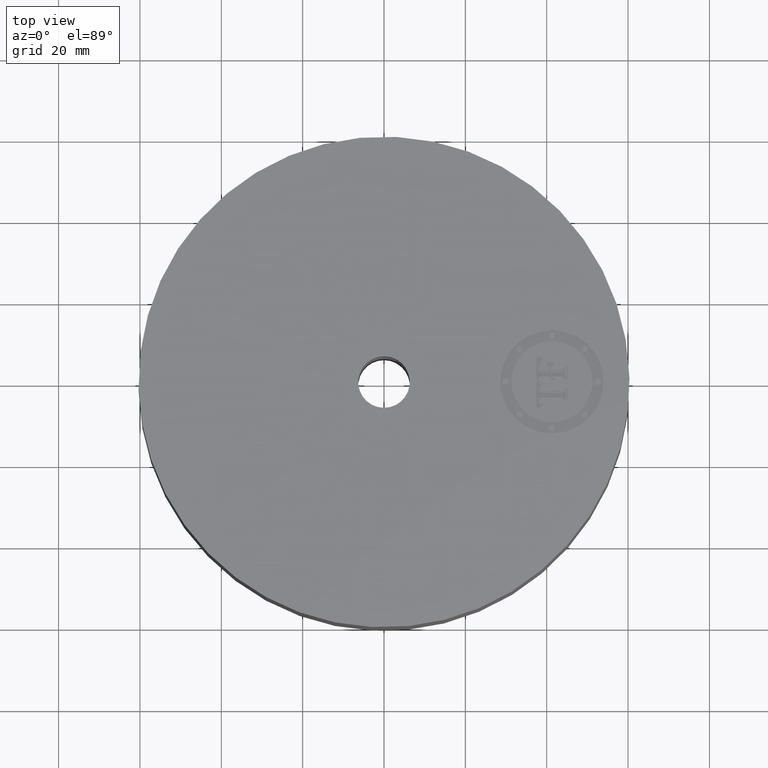
[diagram: clean part render]
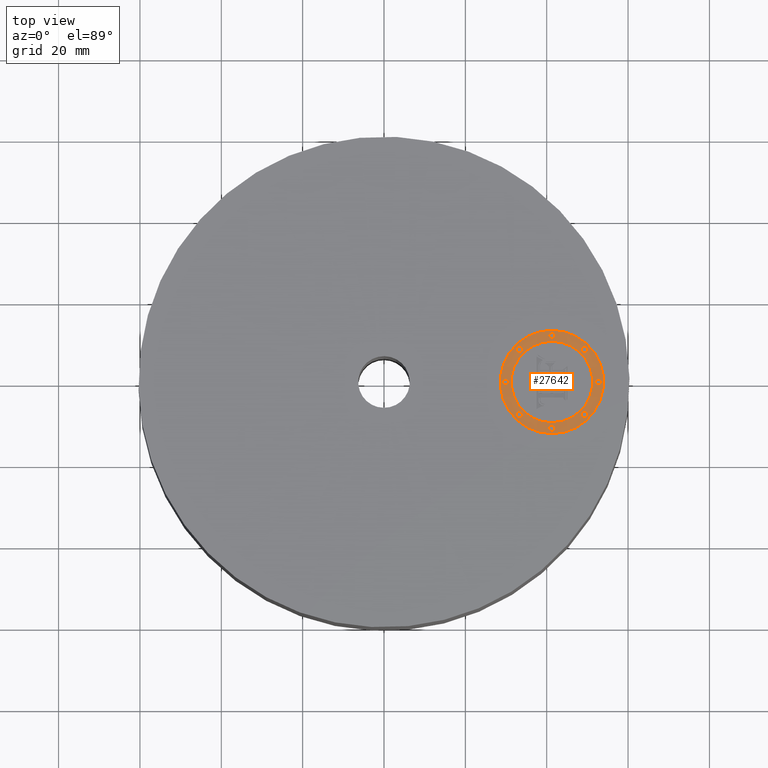
[diagram: same view with one face highlighted and labeled with its STEP entity id]
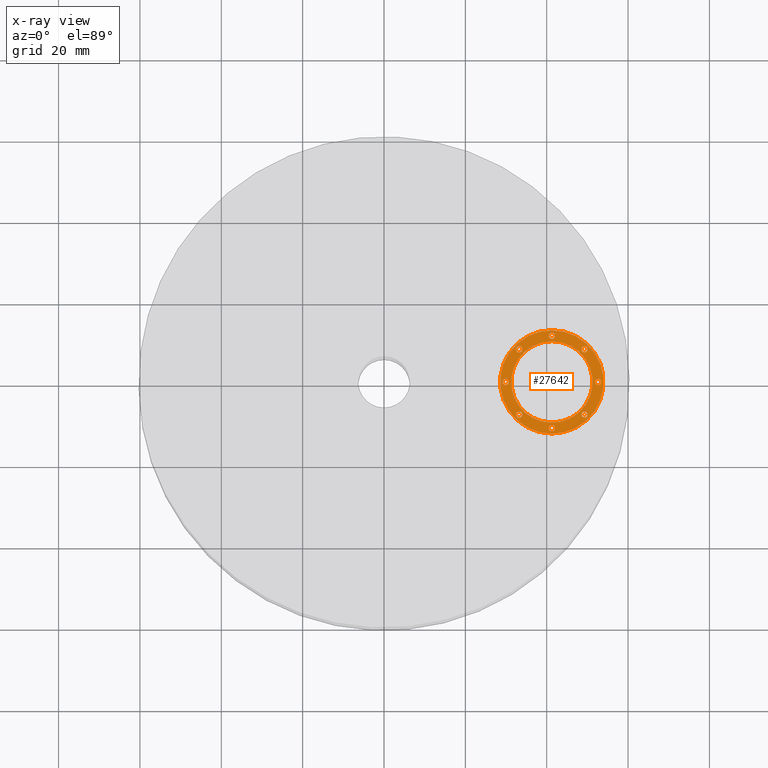
[diagram: x-ray of the same camera — body ghosted, the highlighted face saturated]
A machine part, top view. The second image highlights one B-rep face of the part: STEP entity #27642.
The next image is the same camera in x-ray: the body ghosted, the highlighted face saturated — about 0% of this face is hidden behind the body in this view.
In plain terms, the highlighted planar face has unit normal (0, 0, 1).
Its self-contained STEP definition (entity closure, byte-faithful):
#16289=AXIS2_PLACEMENT_3D('Plane Axis2P3D',#16286,#16287,#16288) ;
#27440=AXIS2_PLACEMENT_3D('Circle Axis2P3D',#27438,#27439,$) ;
#27459=AXIS2_PLACEMENT_3D('Circle Axis2P3D',#27457,#27458,$) ;
#27482=AXIS2_PLACEMENT_3D('Circle Axis2P3D',#27480,#27481,$) ;
#27491=AXIS2_PLACEMENT_3D('Circle Axis2P3D',#27489,#27490,$) ;
#27500=AXIS2_PLACEMENT_3D('Circle Axis2P3D',#27498,#27499,$) ;
#27509=AXIS2_PLACEMENT_3D('Circle Axis2P3D',#27507,#27508,$) ;
#27518=AXIS2_PLACEMENT_3D('Circle Axis2P3D',#27516,#27517,$) ;
#27527=AXIS2_PLACEMENT_3D('Circle Axis2P3D',#27525,#27526,$) ;
#27536=AXIS2_PLACEMENT_3D('Circle Axis2P3D',#27534,#27535,$) ;
#27545=AXIS2_PLACEMENT_3D('Circle Axis2P3D',#27543,#27544,$) ;
#27554=AXIS2_PLACEMENT_3D('Circle Axis2P3D',#27552,#27553,$) ;
#27563=AXIS2_PLACEMENT_3D('Circle Axis2P3D',#27561,#27562,$) ;
#27572=AXIS2_PLACEMENT_3D('Circle Axis2P3D',#27570,#27571,$) ;
#27581=AXIS2_PLACEMENT_3D('Circle Axis2P3D',#27579,#27580,$) ;
#27590=AXIS2_PLACEMENT_3D('Circle Axis2P3D',#27588,#27589,$) ;
#27599=AXIS2_PLACEMENT_3D('Circle Axis2P3D',#27597,#27598,$) ;
#27608=AXIS2_PLACEMENT_3D('Circle Axis2P3D',#27606,#27607,$) ;
#27617=AXIS2_PLACEMENT_3D('Circle Axis2P3D',#27615,#27616,$) ;
#27626=AXIS2_PLACEMENT_3D('Circle Axis2P3D',#27624,#27625,$) ;
#27635=AXIS2_PLACEMENT_3D('Circle Axis2P3D',#27633,#27634,$) ;
#16286=CARTESIAN_POINT('Axis2P3D Location',(0.,0.,1.98500000001)) ;
#27428=CARTESIAN_POINT('Vertex',(1.62500000001,0.499999995002,1.98500000001)) ;
#27435=CARTESIAN_POINT('Vertex',(1.62500000001,-0.499999995002,1.98500000001)) ;
#27438=CARTESIAN_POINT('Axis2P3D Location',(1.62500000001,0.,1.98500000001)) ;
#27457=CARTESIAN_POINT('Axis2P3D Location',(1.62500000001,0.,1.98500000001)) ;
#27480=CARTESIAN_POINT('Axis2P3D Location',(1.62500000001,0.,1.98500000001)) ;
#27484=CARTESIAN_POINT('Vertex',(1.62500000001,-0.393939390002,1.98500000001)) ;
#27486=CARTESIAN_POINT('Vertex',(1.62500000001,0.393939390002,1.98500000001)) ;
#27489=CARTESIAN_POINT('Axis2P3D Location',(1.62500000001,0.,1.98500000001)) ;
#27498=CARTESIAN_POINT('Axis2P3D Location',(1.1780303075,-1.27155105343E-015,1.98500000001)) ;
#27502=CARTESIAN_POINT('Vertex',(1.1780303075,-0.0303030300001,1.98500000001)) ;
#27504=CARTESIAN_POINT('Vertex',(1.1780303075,0.0303030300001,1.98500000001)) ;
#27507=CARTESIAN_POINT('Axis2P3D Location',(1.1780303075,-1.27155105343E-015,1.98500000001)) ;
#27516=CARTESIAN_POINT('Axis2P3D Location',(1.62500000001,0.446969692502,1.98500000001)) ;
#27520=CARTESIAN_POINT('Vertex',(1.62500000001,0.416666662502,1.98500000001)) ;
#27522=CARTESIAN_POINT('Vertex',(1.62500000001,0.477272722502,1.98500000001)) ;
#27525=CARTESIAN_POINT('Axis2P3D Location',(1.62500000001,0.446969692502,1.98500000001)) ;
#27534=CARTESIAN_POINT('Axis2P3D Location',(1.30894469945,0.316055300553,1.98500000001)) ;
#27538=CARTESIAN_POINT('Vertex',(1.30894469945,0.285752270553,1.98500000001)) ;
#27540=CARTESIAN_POINT('Vertex',(1.30894469945,0.346358330553,1.98500000001)) ;
#27543=CARTESIAN_POINT('Axis2P3D Location',(1.30894469945,0.316055300553,1.98500000001)) ;
#27552=CARTESIAN_POINT('Axis2P3D Location',(2.07196969251,1.17265263816E-014,1.98500000001)) ;
#27556=CARTESIAN_POINT('Vertex',(2.07196969251,-0.0303030300001,1.98500000001)) ;
#27558=CARTESIAN_POINT('Vertex',(2.07196969251,0.0303030300001,1.98500000001)) ;
#27561=CARTESIAN_POINT('Axis2P3D Location',(2.07196969251,1.17265263816E-014,1.98500000001)) ;
#27570=CARTESIAN_POINT('Axis2P3D Location',(1.94105530056,0.316055300553,1.98500000001)) ;
#27574=CARTESIAN_POINT('Vertex',(1.94105530056,0.285752270553,1.98500000001)) ;
#27576=CARTESIAN_POINT('Vertex',(1.94105530056,0.346358330553,1.98500000001)) ;
#27579=CARTESIAN_POINT('Axis2P3D Location',(1.94105530056,0.316055300553,1.98500000001)) ;
#27588=CARTESIAN_POINT('Axis2P3D Location',(1.62500000001,-0.446969692502,1.98500000001)) ;
#27592=CARTESIAN_POINT('Vertex',(1.62500000001,-0.416666662502,1.98500000001)) ;
#27594=CARTESIAN_POINT('Vertex',(1.62500000001,-0.477272722502,1.98500000001)) ;
#27597=CARTESIAN_POINT('Axis2P3D Location',(1.62500000001,-0.446969692502,1.98500000001)) ;
#27606=CARTESIAN_POINT('Axis2P3D Location',(1.30894469945,-0.316055300553,1.98500000001)) ;
#27610=CARTESIAN_POINT('Vertex',(1.30894469945,-0.285752270553,1.98500000001)) ;
#27612=CARTESIAN_POINT('Vertex',(1.30894469945,-0.346358330553,1.98500000001)) ;
#27615=CARTESIAN_POINT('Axis2P3D Location',(1.30894469945,-0.316055300553,1.98500000001)) ;
#27624=CARTESIAN_POINT('Axis2P3D Location',(1.94105530056,-0.316055300553,1.98500000001)) ;
#27628=CARTESIAN_POINT('Vertex',(1.94105530056,-0.285752270553,1.98500000001)) ;
#27630=CARTESIAN_POINT('Vertex',(1.94105530056,-0.346358330553,1.98500000001)) ;
#27633=CARTESIAN_POINT('Axis2P3D Location',(1.94105530056,-0.316055300553,1.98500000001)) ;
#16287=DIRECTION('Axis2P3D Direction',(0.,0.,0.0393700787402)) ;
#16288=DIRECTION('Axis2P3D XDirection',(0.0393700787402,0.,0.)) ;
#27439=DIRECTION('Axis2P3D Direction',(0.,0.,0.0393700787402)) ;
#27458=DIRECTION('Axis2P3D Direction',(0.,0.,0.0393700787402)) ;
#27481=DIRECTION('Axis2P3D Direction',(0.,0.,0.0393700787402)) ;
#27490=DIRECTION('Axis2P3D Direction',(0.,0.,0.0393700787402)) ;
#27499=DIRECTION('Axis2P3D Direction',(0.,0.,0.0393700787402)) ;
#27508=DIRECTION('Axis2P3D Direction',(0.,0.,0.0393700787402)) ;
#27517=DIRECTION('Axis2P3D Direction',(0.,0.,0.0393700787402)) ;
#27526=DIRECTION('Axis2P3D Direction',(0.,0.,0.0393700787402)) ;
#27535=DIRECTION('Axis2P3D Direction',(0.,0.,0.0393700787402)) ;
#27544=DIRECTION('Axis2P3D Direction',(0.,0.,0.0393700787402)) ;
#27553=DIRECTION('Axis2P3D Direction',(0.,0.,0.0393700787402)) ;
#27562=DIRECTION('Axis2P3D Direction',(0.,0.,0.0393700787402)) ;
#27571=DIRECTION('Axis2P3D Direction',(0.,0.,0.0393700787402)) ;
#27580=DIRECTION('Axis2P3D Direction',(0.,0.,0.0393700787402)) ;
#27589=DIRECTION('Axis2P3D Direction',(0.,0.,0.0393700787402)) ;
#27598=DIRECTION('Axis2P3D Direction',(0.,0.,0.0393700787402)) ;
#27607=DIRECTION('Axis2P3D Direction',(0.,0.,0.0393700787402)) ;
#27616=DIRECTION('Axis2P3D Direction',(0.,0.,0.0393700787402)) ;
#27625=DIRECTION('Axis2P3D Direction',(0.,0.,0.0393700787402)) ;
#27634=DIRECTION('Axis2P3D Direction',(0.,0.,0.0393700787402)) ;
#27477=ORIENTED_EDGE('',*,*,#27442,.T.) ;
#27478=ORIENTED_EDGE('',*,*,#27461,.T.) ;
#27495=ORIENTED_EDGE('',*,*,#27488,.F.) ;
#27496=ORIENTED_EDGE('',*,*,#27493,.F.) ;
#27513=ORIENTED_EDGE('',*,*,#27506,.F.) ;
#27514=ORIENTED_EDGE('',*,*,#27511,.F.) ;
#27531=ORIENTED_EDGE('',*,*,#27524,.F.) ;
#27532=ORIENTED_EDGE('',*,*,#27529,.F.) ;
#27549=ORIENTED_EDGE('',*,*,#27542,.F.) ;
#27550=ORIENTED_EDGE('',*,*,#27547,.F.) ;
#27567=ORIENTED_EDGE('',*,*,#27560,.F.) ;
#27568=ORIENTED_EDGE('',*,*,#27565,.F.) ;
#27585=ORIENTED_EDGE('',*,*,#27578,.F.) ;
#27586=ORIENTED_EDGE('',*,*,#27583,.F.) ;
#27603=ORIENTED_EDGE('',*,*,#27596,.F.) ;
#27604=ORIENTED_EDGE('',*,*,#27601,.F.) ;
#27621=ORIENTED_EDGE('',*,*,#27614,.F.) ;
#27622=ORIENTED_EDGE('',*,*,#27619,.F.) ;
#27639=ORIENTED_EDGE('',*,*,#27632,.F.) ;
#27640=ORIENTED_EDGE('',*,*,#27637,.F.) ;
#27497=FACE_BOUND('',#27494,.T.) ;
#27515=FACE_BOUND('',#27512,.T.) ;
#27533=FACE_BOUND('',#27530,.T.) ;
#27551=FACE_BOUND('',#27548,.T.) ;
#27569=FACE_BOUND('',#27566,.T.) ;
#27587=FACE_BOUND('',#27584,.T.) ;
#27605=FACE_BOUND('',#27602,.T.) ;
#27623=FACE_BOUND('',#27620,.T.) ;
#27641=FACE_BOUND('',#27638,.T.) ;
#27642=ADVANCED_FACE('PartBody',(#27479,#27497,#27515,#27533,#27551,#27569,#27587,#27605,#27623,#27641),#16290,.T.) ;
#27441=CIRCLE('generated circle',#27440,0.499999995002) ;
#27460=CIRCLE('generated circle',#27459,0.499999995002) ;
#27483=CIRCLE('generated circle',#27482,0.393939390002) ;
#27492=CIRCLE('generated circle',#27491,0.393939390002) ;
#27501=CIRCLE('generated circle',#27500,0.0303030300001) ;
#27510=CIRCLE('generated circle',#27509,0.0303030300001) ;
#27519=CIRCLE('generated circle',#27518,0.0303030300001) ;
#27528=CIRCLE('generated circle',#27527,0.0303030300001) ;
#27537=CIRCLE('generated circle',#27536,0.0303030300001) ;
#27546=CIRCLE('generated circle',#27545,0.0303030300001) ;
#27555=CIRCLE('generated circle',#27554,0.0303030300001) ;
#27564=CIRCLE('generated circle',#27563,0.0303030300001) ;
#27573=CIRCLE('generated circle',#27572,0.0303030300001) ;
#27582=CIRCLE('generated circle',#27581,0.0303030300001) ;
#27591=CIRCLE('generated circle',#27590,0.0303030300001) ;
#27600=CIRCLE('generated circle',#27599,0.0303030300001) ;
#27609=CIRCLE('generated circle',#27608,0.0303030300001) ;
#27618=CIRCLE('generated circle',#27617,0.0303030300001) ;
#27627=CIRCLE('generated circle',#27626,0.0303030300001) ;
#27636=CIRCLE('generated circle',#27635,0.0303030300001) ;
#27442=EDGE_CURVE('',#27429,#27436,#27441,.T.) ;
#27461=EDGE_CURVE('',#27436,#27429,#27460,.T.) ;
#27488=EDGE_CURVE('',#27485,#27487,#27483,.T.) ;
#27493=EDGE_CURVE('',#27487,#27485,#27492,.T.) ;
#27506=EDGE_CURVE('',#27503,#27505,#27501,.T.) ;
#27511=EDGE_CURVE('',#27505,#27503,#27510,.T.) ;
#27524=EDGE_CURVE('',#27521,#27523,#27519,.T.) ;
#27529=EDGE_CURVE('',#27523,#27521,#27528,.T.) ;
#27542=EDGE_CURVE('',#27539,#27541,#27537,.T.) ;
#27547=EDGE_CURVE('',#27541,#27539,#27546,.T.) ;
#27560=EDGE_CURVE('',#27557,#27559,#27555,.T.) ;
#27565=EDGE_CURVE('',#27559,#27557,#27564,.T.) ;
#27578=EDGE_CURVE('',#27575,#27577,#27573,.T.) ;
#27583=EDGE_CURVE('',#27577,#27575,#27582,.T.) ;
#27596=EDGE_CURVE('',#27593,#27595,#27591,.T.) ;
#27601=EDGE_CURVE('',#27595,#27593,#27600,.T.) ;
#27614=EDGE_CURVE('',#27611,#27613,#27609,.T.) ;
#27619=EDGE_CURVE('',#27613,#27611,#27618,.T.) ;
#27632=EDGE_CURVE('',#27629,#27631,#27627,.T.) ;
#27637=EDGE_CURVE('',#27631,#27629,#27636,.T.) ;
#27476=EDGE_LOOP('',(#27477,#27478)) ;
#27494=EDGE_LOOP('',(#27495,#27496)) ;
#27512=EDGE_LOOP('',(#27513,#27514)) ;
#27530=EDGE_LOOP('',(#27531,#27532)) ;
#27548=EDGE_LOOP('',(#27549,#27550)) ;
#27566=EDGE_LOOP('',(#27567,#27568)) ;
#27584=EDGE_LOOP('',(#27585,#27586)) ;
#27602=EDGE_LOOP('',(#27603,#27604)) ;
#27620=EDGE_LOOP('',(#27621,#27622)) ;
#27638=EDGE_LOOP('',(#27639,#27640)) ;
#27479=FACE_OUTER_BOUND('',#27476,.T.) ;
#16290=PLANE('',#16289) ;
#27429=VERTEX_POINT('',#27428) ;
#27436=VERTEX_POINT('',#27435) ;
#27485=VERTEX_POINT('',#27484) ;
#27487=VERTEX_POINT('',#27486) ;
#27503=VERTEX_POINT('',#27502) ;
#27505=VERTEX_POINT('',#27504) ;
#27521=VERTEX_POINT('',#27520) ;
#27523=VERTEX_POINT('',#27522) ;
#27539=VERTEX_POINT('',#27538) ;
#27541=VERTEX_POINT('',#27540) ;
#27557=VERTEX_POINT('',#27556) ;
#27559=VERTEX_POINT('',#27558) ;
#27575=VERTEX_POINT('',#27574) ;
#27577=VERTEX_POINT('',#27576) ;
#27593=VERTEX_POINT('',#27592) ;
#27595=VERTEX_POINT('',#27594) ;
#27611=VERTEX_POINT('',#27610) ;
#27613=VERTEX_POINT('',#27612) ;
#27629=VERTEX_POINT('',#27628) ;
#27631=VERTEX_POINT('',#27630) ;